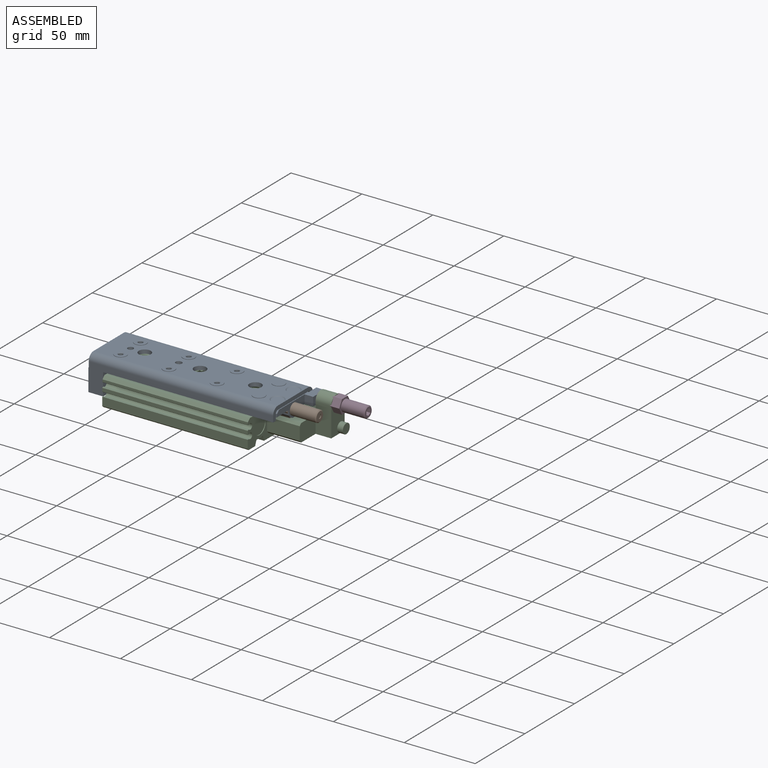
[diagram: assembled view]
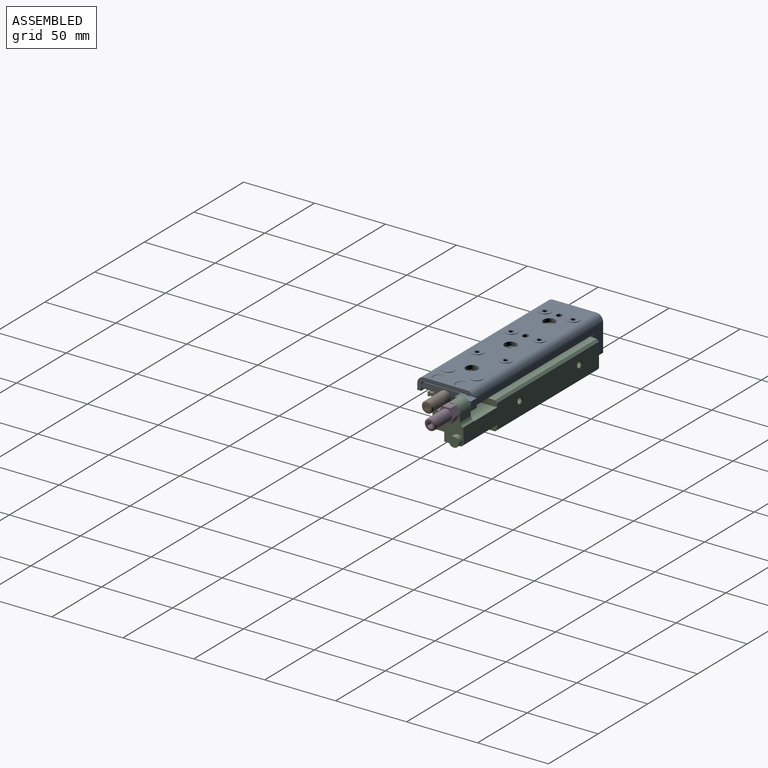
[diagram: assembled view, second angle]
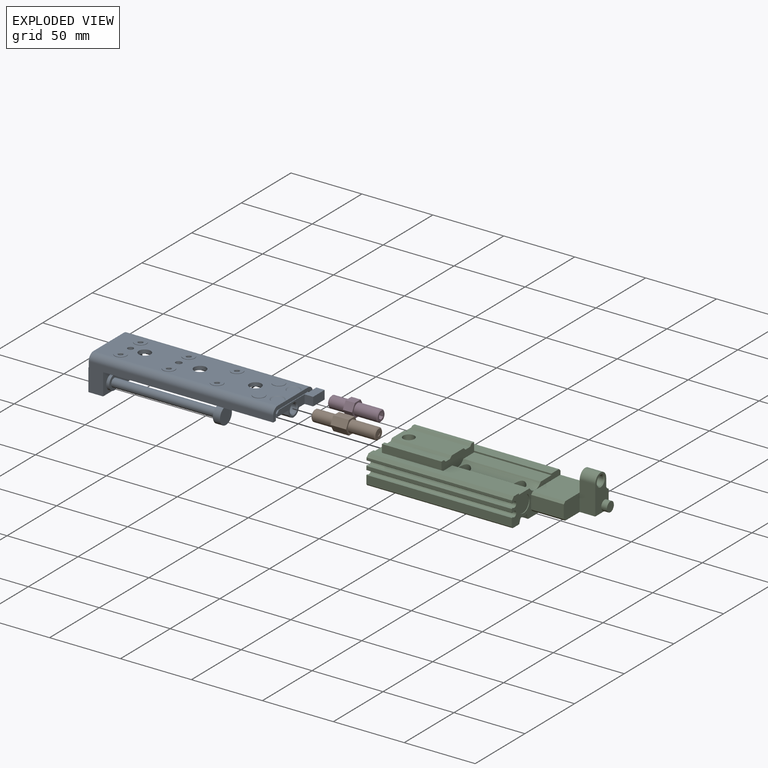
[diagram: exploded view]
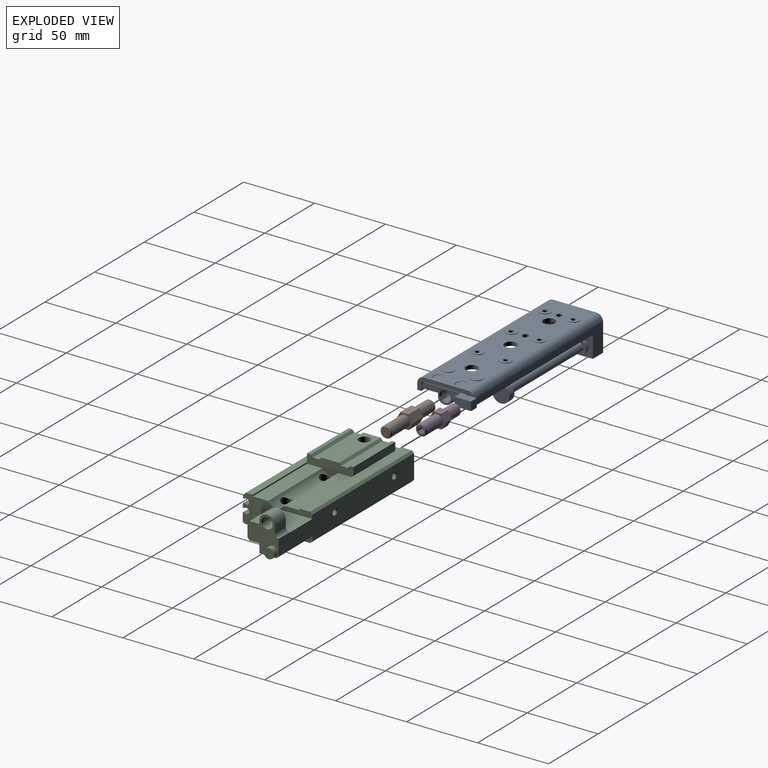
[diagram: exploded view, second angle]
ASSEMBLY  parts=4 mates=3
PART A: 115 faces, bbox 137x42.5x24.9 mm
  f0: plane 130x30.6mm, normal (0,0,1), area 3193.7mm2, adj f8,f10,f23,f24,f25,f45,f47,f49
  f1: plane 39.4x10.4mm, normal (0,0,-1), area 409.8mm2, adj f2,f3,f77,f78
  f2: plane 15.6x10.4mm, normal (0,1,0), area 162.2mm2, adj f1,f77,f78,f84,f90
  f3: plane 15.6x10.4mm, normal (0,-1,0), area 162.2mm2, adj f1,f77,f78,f85,f96
  f4: plane 11.5x3.4mm, normal (0,-1,0), area 37.4mm2, adj f5,f6,f99,f105,f110
  f5: plane 9.08x2mm, normal (0,-0.71,-0.71), area 20.8mm2, adj f4,f100,f105,f110
  f6: plane 11.5x2mm, normal (0,-0.71,0.71), area 32.5mm2, adj f4,f93,f99,f104,f105
  f7: plane 8.2x8.2mm, normal (0,0,1), area 52.8mm2, adj f8
  f8: cone r=4.6mm half-angle=45deg, axis (0,0,1), area 19.3mm2, adj f0,f7
  f9: plane 8.2x8.2mm, normal (0,0,1), area 52.8mm2, adj f10
  f10: cone r=4.6mm half-angle=45deg, axis (0,0,1), area 19.3mm2, adj f0,f9
  f11: plane 12x12mm, normal (1,0,0), area 113.1mm2, adj f12
  f12: cylinder r=6mm len=12mm, axis (-1,0,0), area 188.5mm2, adj f11,f13
  f13: plane 12x12mm, normal (-1,0,0), area 84.8mm2, adj f12,f14
  f14: cylinder r=3mm len=73.75mm, axis (-1,0,0), area 1390.2mm2, adj f13,f15
  f15: plane 10.1x10.1mm, normal (1,0,0), area 51.8mm2, adj f14,f16
  f16: cylinder r=5.05mm len=10.1mm, axis (-1,0,0), area 66.6mm2, adj f15,f77
  f17: plane 12x12mm, normal (1,0,0), area 113.1mm2, adj f18
  f18: cylinder r=6mm len=12mm, axis (-1,0,0), area 188.5mm2, adj f17,f19
  f19: plane 12x12mm, normal (-1,0,0), area 84.8mm2, adj f18,f20
  f20: cylinder r=3mm len=73.75mm, axis (-1,0,0), area 1390.2mm2, adj f19,f21
  f21: plane 10.1x10.1mm, normal (1,0,0), area 51.8mm2, adj f20,f22
  f22: cylinder r=5.05mm len=10.1mm, axis (-1,0,0), area 66.6mm2, adj f21,f77
  f23: cylinder r=4.25mm len=8.5mm, axis (0,0,1), area 72.1mm2, adj f0,f93
  f24: cylinder r=4.25mm len=8.5mm, axis (0,0,1), area 72.1mm2, adj f0,f93
  f25: cylinder r=4.25mm len=8.5mm, axis (0,0,1), area 72.1mm2, adj f0,f93
  f26: cone r=1.62mm half-angle=45deg, axis (0,0,-1), area 6.1mm2, adj f27,f93
  f27: cylinder r=1.62mm len=3.24mm, axis (0,0,1), area 22.8mm2, adj f26,f28
  f28: cone r=2mm half-angle=45deg, axis (0,0,1), area 6.1mm2, adj f27,f61
  f29: cone r=1.62mm half-angle=45deg, axis (0,0,-1), area 6.1mm2, adj f30,f93
  f30: cylinder r=1.62mm len=3.24mm, axis (0,0,1), area 22.8mm2, adj f29,f31
  f31: cone r=2mm half-angle=45deg, axis (0,0,1), area 6.1mm2, adj f30,f63
  f32: cone r=1.62mm half-angle=45deg, axis (0,0,-1), area 6.1mm2, adj f33,f93
  f33: cylinder r=1.62mm len=3.24mm, axis (0,0,1), area 22.8mm2, adj f32,f34
  f34: cone r=2mm half-angle=45deg, axis (0,0,1), area 6.1mm2, adj f33,f65
  f35: cone r=1.62mm half-angle=45deg, axis (0,0,-1), area 6.1mm2, adj f36,f93
  f36: cylinder r=1.62mm len=3.24mm, axis (0,0,1), area 22.8mm2, adj f35,f37
  f37: cone r=2mm half-angle=45deg, axis (0,0,1), area 6.1mm2, adj f36,f55
  f38: cone r=1.62mm half-angle=45deg, axis (0,0,-1), area 6.1mm2, adj f39,f93
  f39: cylinder r=1.62mm len=3.24mm, axis (0,0,1), area 22.8mm2, adj f38,f40
  f40: cone r=2mm half-angle=45deg, axis (0,0,1), area 6.1mm2, adj f39,f57
  f41: cone r=1.62mm half-angle=45deg, axis (0,0,-1), area 6.1mm2, adj f42,f93
  f42: cylinder r=1.62mm len=3.24mm, axis (0,0,1), area 22.8mm2, adj f41,f43
  f43: cone r=2mm half-angle=45deg, axis (0,0,1), area 6.1mm2, adj f42,f59
  f44: plane 8.5x8.5mm, normal (0,0,1), area 56.7mm2, adj f45
  f45: cylinder r=4.25mm len=8.5mm, axis (0,0,-1), area 8mm2, adj f0,f44
  f46: plane 8.5x8.5mm, normal (0,0,1), area 56.7mm2, adj f47
  f47: cylinder r=4.25mm len=8.5mm, axis (0,0,-1), area 8mm2, adj f0,f46
  f48: plane 4.5x4mm, normal (0,0,1), area 14.6mm2, adj f49,f50,f51,f52
  f49: cylinder r=2mm len=4mm, axis (0,0,-1), area 12.6mm2, adj f0,f48,f50,f52
  f50: plane 2x0.5mm, normal (0,1,0), area 1mm2, adj f0,f48,f49,f51
  f51: cylinder r=2mm len=4mm, axis (0,0,-1), area 12.6mm2, adj f0,f48,f50,f52
  f52: plane 2x0.5mm, normal (0,-1,0), area 1mm2, adj f0,f48,f49,f51
  f53: plane 4x4mm, normal (0,0,1), area 12.6mm2, adj f54
  f54: cylinder r=2mm len=4mm, axis (0,0,-1), area 25.1mm2, adj f0,f53
  f55: plane 8.5x8.5mm, normal (0,0,1), area 44.2mm2, adj f37,f56
  f56: cylinder r=4.25mm len=8.5mm, axis (0,0,-1), area 8mm2, adj f0,f55
  f57: plane 8.5x8.5mm, normal (0,0,1), area 44.2mm2, adj f40,f58
  f58: cylinder r=4.25mm len=8.5mm, axis (0,0,-1), area 8mm2, adj f0,f57
  f59: plane 8.5x8.5mm, normal (0,0,1), area 44.2mm2, adj f43,f60
  f60: cylinder r=4.25mm len=8.5mm, axis (0,0,-1), area 8mm2, adj f0,f59
  f61: plane 8.5x8.5mm, normal (0,0,1), area 44.2mm2, adj f28,f62
  f62: cylinder r=4.25mm len=8.5mm, axis (0,0,-1), area 8mm2, adj f0,f61
  f63: plane 8.5x8.5mm, normal (0,0,1), area 44.2mm2, adj f31,f64
  f64: cylinder r=4.25mm len=8.5mm, axis (0,0,-1), area 8mm2, adj f0,f63
  f65: plane 8.5x8.5mm, normal (0,0,1), area 44.2mm2, adj f34,f66
  f66: cylinder r=4.25mm len=8.5mm, axis (0,0,-1), area 8mm2, adj f0,f65
  f67: cone r=1.23mm half-angle=45deg, axis (-1,0,0), area 3.3mm2, adj f68,f78
  f68: cylinder r=1.23mm len=4.73mm, axis (1,0,0), area 36.5mm2, adj f67,f69
  f69: cone r=866.03mm half-angle=60deg, axis (-1,0,0), area 5.5mm2, adj f68
  f70: cone r=1.23mm half-angle=45deg, axis (-1,0,0), area 3.3mm2, adj f71,f78
  f71: cylinder r=1.23mm len=4.73mm, axis (1,0,0), area 36.5mm2, adj f70,f72
  f72: cone r=866.03mm half-angle=60deg, axis (-1,0,0), area 5.5mm2, adj f71
  f73: plane 10.6x10.6mm, normal (-1,0,0), area 88.2mm2, adj f74
  f74: cylinder r=5.3mm len=10.6mm, axis (1,0,0), area 16.7mm2, adj f73,f78
  f75: plane 10.6x10.6mm, normal (-1,0,0), area 88.2mm2, adj f76
  f76: cylinder r=5.3mm len=10.6mm, axis (1,0,0), area 16.7mm2, adj f75,f78
  f77: plane 39.4x21.9mm, normal (1,0,0), area 670.7mm2, adj f1,f2,f3,f16,f22,f90,f91,f92
  f78: plane 39.4x21.9mm, normal (-1,0,0), area 640.3mm2, adj f1,f2,f3,f67,f70,f74,f76,f79
  f79: plane 4.3x0.5mm, normal (0,-1,0), area 2.2mm2, adj f78,f80,f85,f86
  f80: cylinder r=2mm len=2mm, axis (1,0,0), area 1.6mm2, adj f78,f79,f81,f86
  f81: plane 30.6x0.5mm, normal (0,0,1), area 15.3mm2, adj f78,f80,f82,f86
  f82: cylinder r=2mm len=2mm, axis (1,0,0), area 1.6mm2, adj f78,f81,f83,f86
  f83: plane 4.3x0.5mm, normal (0,1,0), area 2.2mm2, adj f78,f82,f84,f86
  f84: plane 2.4x0.5mm, normal (0,0,1), area 1.2mm2, adj f2,f78,f83,f86
  f85: plane 2.4x0.5mm, normal (0,0,1), area 1.2mm2, adj f3,f78,f79,f86
  f86: plane 40x9mm, normal (-1,0,0), area 134.3mm2, adj f0,f79,f80,f81,f82,f83,f84,f85
  f87: plane 40x9mm, normal (1,0,0), area 134.3mm2, adj f0,f88,f89,f90,f91,f92,f93,f94
  f88: cylinder r=4.7mm len=130mm, axis (1,0,0), area 959.8mm2, adj f0,f86,f87,f89
  f89: plane 130x4.3mm, normal (0,1,0), area 559mm2, adj f86,f87,f88,f90
  f90: plane 130x2.7mm, normal (0,0,-1), area 327.2mm2, adj f2,f77,f86,f87,f89,f91
  f91: plane 120.1x4.3mm, normal (0,-1,0), area 516.4mm2, adj f77,f87,f90,f92
  f92: cylinder r=2mm len=120.1mm, axis (1,0,0), area 377.3mm2, adj f77,f87,f91,f93
  f93: plane 120.1x30.6mm, normal (0,0,-1), area 3101.6mm2, adj f6,f23,f24,f25,f26,f29,f32,f35
  f94: cylinder r=2mm len=120.1mm, axis (1,0,0), area 377.3mm2, adj f77,f87,f93,f95
  f95: plane 120.1x4.3mm, normal (0,1,0), area 516.4mm2, adj f77,f87,f94,f96
  f96: plane 130x2.7mm, normal (0,0,-1), area 327.2mm2, adj f3,f77,f86,f87,f95,f97
  f97: plane 130x4.3mm, normal (0,-1,0), area 559mm2, adj f86,f87,f96,f98
  f98: cylinder r=4.7mm len=130mm, axis (1,0,0), area 959.8mm2, adj f0,f86,f87,f97
  f99: plane 27.8x10.4mm, normal (1,0,0), area 125.9mm2, adj f4,f6,f100,f101,f102,f104,f106,f110
  f100: plane 11.5x10.13mm, normal (0,0,-1), area 58.1mm2, adj f5,f99,f101,f105,f110,f111
  f101: cylinder r=5.3mm len=11.5mm, axis (-1,0,0), area 152.6mm2, adj f99,f100,f102,f105
  f102: plane 17.5x17.3mm, normal (0,0,-1), area 179.6mm2, adj f99,f101,f103,f105,f106,f107,f108,f109
  f103: plane 11.7x6.1mm, normal (0,1,0), area 71.4mm2, adj f93,f102,f104,f105,f108
  f104: plane 37.4x6.5mm, normal (0,0,1), area 83mm2, adj f6,f87,f99,f103,f106,f107,f108,f109
  f105: plane 31.8x10.4mm, normal (-1,0,0), area 188.7mm2, adj f4,f5,f6,f93,f100,f101,f102,f103
  f106: plane 6.1x6mm, normal (0,-1,0), area 36.6mm2, adj f99,f102,f104,f109
  f107: plane 6.1x5.8mm, normal (0,1,0), area 35.4mm2, adj f102,f104,f108,f109
  f108: plane 7.6x6.1mm, normal (-1,0,0), area 46.4mm2, adj f102,f103,f104,f107
  f109: plane 11.6x6.1mm, normal (1,0,0), area 70.8mm2, adj f102,f104,f106,f107
  f110: plane 11.9x5.89mm, normal (0.5,0,-0.87), area 76.9mm2, adj f4,f5,f99,f100,f111
  f111: plane 5.89x3.4mm, normal (0,-1,0), area 10mm2, adj f99,f100,f110
  f112: cone r=4mm half-angle=45deg, axis (1,0,0), area 22mm2, adj f99,f113
  f113: cylinder r=3.32mm len=10.15mm, axis (1,0,0), area 211.9mm2, adj f112,f114
  f114: cone r=3.32mm half-angle=45deg, axis (-1,0,0), area 22mm2, adj f105,f113
PART B: 23 faces, bbox 45x11.5x10 mm
  f0: plane 11x5.77mm, normal (0,0,-1), area 63.5mm2, adj f1,f2,f4,f9
  f1: plane 11.55x10mm, normal (1,0,0), area 36.3mm2, adj f0,f2,f4,f10,f20,f21,f22
  f2: plane 11x5mm, normal (0,0.87,-0.5), area 63.5mm2, adj f0,f1,f9,f22
  f3: plane 6.77x6.77mm, normal (1,0,0), area 22.2mm2, adj f5,f11,f12,f13,f14,f15,f16
  f4: plane 11x5mm, normal (0,-0.87,-0.5), area 63.5mm2, adj f0,f1,f9,f20
  f5: cone r=4mm half-angle=45deg, axis (-1,0,0), area 20.1mm2, adj f3,f10
  f6: cylinder r=4mm len=18.39mm, axis (-1,0,0), area 462.1mm2, adj f7,f9
  f7: cone r=3.39mm half-angle=45deg, axis (1,0,0), area 20.1mm2, adj f6,f8
  f8: plane 6.77x6.77mm, normal (-1,0,0), area 29.9mm2, adj f7,f19
  f9: plane 11.55x10mm, normal (-1,0,0), area 36.3mm2, adj f0,f2,f4,f6,f20,f21,f22
  f10: cylinder r=4mm len=14.39mm, axis (-1,0,0), area 361.6mm2, adj f1,f5
  f11: plane 4x2.31mm, normal (0,1,0), area 9.2mm2, adj f3,f12,f16,f17
  f12: plane 4x2mm, normal (0,0.5,-0.87), area 9.2mm2, adj f3,f11,f13,f17
  f13: plane 4x2mm, normal (0,-0.5,-0.87), area 9.2mm2, adj f3,f12,f14,f17
  f14: plane 4x2.31mm, normal (0,-1,0), area 9.2mm2, adj f3,f13,f15,f17
  f15: plane 4x2mm, normal (0,-0.5,0.87), area 9.2mm2, adj f3,f14,f16,f17
  f16: plane 4x2mm, normal (0,0.5,0.87), area 9.2mm2, adj f3,f11,f15,f17
  f17: plane 4.62x4mm, normal (1,0,0), area 13.9mm2, adj f11,f12,f13,f14,f15,f16
  f18: plane 2.8x2.8mm, normal (-1,0,0), area 6.2mm2, adj f19
  f19: cylinder r=1.4mm len=2.8mm, axis (1,0,0), area 4.4mm2, adj f8,f18
  f20: plane 11x5mm, normal (0,-0.87,0.5), area 63.5mm2, adj f1,f4,f9,f21
  f21: plane 11x5.77mm, normal (0,0,1), area 63.5mm2, adj f1,f9,f20,f22
  f22: plane 11x5mm, normal (0,0.87,0.5), area 63.5mm2, adj f1,f2,f9,f21
PART C: 125 faces, bbox 140.5x49x29.4 mm
  f0: cylinder r=4mm len=8mm, axis (0,0,1), area 140.2mm2, adj f84,f122
  f1: cylinder r=2.1mm len=11.1mm, axis (0,0,1), area 146.5mm2, adj f115,f116
  f2: cylinder r=2.1mm len=11.1mm, axis (0,0,1), area 146.5mm2, adj f118,f119
  f3: cylinder r=2.1mm len=11.1mm, axis (0,0,1), area 146.5mm2, adj f121,f122
  f4: plane 5x4mm, normal (0,0,-1), area 16.6mm2, adj f5,f6,f7,f8
  f5: cylinder r=2mm len=4mm, axis (0,0,1), area 15.7mm2, adj f4,f6,f8,f45
  f6: plane 2.5x1mm, normal (0,1,0), area 2.5mm2, adj f4,f5,f7,f45
  f7: cylinder r=2mm len=4mm, axis (0,0,1), area 15.7mm2, adj f4,f6,f8,f45
  f8: plane 2.5x1mm, normal (0,-1,0), area 2.5mm2, adj f4,f5,f7,f45
  f9: plane 4x4mm, normal (0,0,-1), area 12.6mm2, adj f10
  f10: cylinder r=2mm len=4mm, axis (0,0,1), area 31.4mm2, adj f9,f45
  f11: plane 5x4mm, normal (0,0,-1), area 16.6mm2, adj f12,f13,f14,f15
  f12: cylinder r=2mm len=4mm, axis (0,0,1), area 15.7mm2, adj f11,f13,f15,f51
  f13: plane 2.5x1mm, normal (0,1,0), area 2.5mm2, adj f11,f12,f14,f51
  f14: cylinder r=2mm len=4mm, axis (0,0,1), area 15.7mm2, adj f11,f13,f15,f51
  f15: plane 2.5x1mm, normal (0,-1,0), area 2.5mm2, adj f11,f12,f14,f51
  f16: plane 4x4mm, normal (0,0,-1), area 12.6mm2, adj f17
  f17: cylinder r=2mm len=4mm, axis (0,0,1), area 31.4mm2, adj f16,f51
  f18: plane 12x12mm, normal (1,0,0), area 113.1mm2, adj f19
  f19: cylinder r=6mm len=12mm, axis (-1,0,0), area 18.8mm2, adj f18,f43,f86
  f20: plane 12x12mm, normal (1,0,0), area 113.1mm2, adj f21
  f21: cylinder r=6mm len=12mm, axis (-1,0,0), area 18.8mm2, adj f20,f85
  f22: cone r=2.07mm half-angle=45deg, axis (0,1,0), area 8.8mm2, adj f23,f42
  f23: cylinder r=2.07mm len=4.57mm, axis (0,-1,0), area 59.3mm2, adj f22,f24
  f24: cone r=866.03mm half-angle=60deg, axis (0,1,0), area 15.5mm2, adj f23
  f25: cone r=2.07mm half-angle=45deg, axis (0,1,0), area 8.8mm2, adj f26,f42
  f26: cylinder r=2.07mm len=4.57mm, axis (0,-1,0), area 59.3mm2, adj f25,f27
  f27: cone r=866.03mm half-angle=60deg, axis (0,1,0), area 15.5mm2, adj f26
  f28: plane 32.8x9.8mm, normal (-1,0,0), area 222mm2, adj f30,f31,f32,f33,f34,f35,f36,f37
  f29: plane 32.8x9.8mm, normal (1,0,0), area 222mm2, adj f30,f31,f32,f33,f34,f35,f36,f37
  f30: plane 42x2.5mm, normal (0,0,1), area 105mm2, adj f28,f29,f31,f40
  f31: plane 42x1.6mm, normal (0,0.71,0.71), area 95mm2, adj f28,f29,f30,f32
  f32: plane 42x4.6mm, normal (0,0,1), area 193.2mm2, adj f28,f29,f31,f33
  f33: plane 42x1.6mm, normal (0,-0.71,0.71), area 95mm2, adj f28,f29,f32,f34
  f34: plane 42x12.2mm, normal (0,0,1), area 462.1mm2, adj f28,f29,f33,f35,f117
  f35: plane 42x1.6mm, normal (0,0.71,0.71), area 95mm2, adj f28,f29,f34,f36
  f36: plane 42x4.6mm, normal (0,0,1), area 193.2mm2, adj f28,f29,f35,f37
  f37: plane 42x1.6mm, normal (0,-0.71,0.71), area 95mm2, adj f28,f29,f36,f38
  f38: plane 42x2.5mm, normal (0,0,1), area 105mm2, adj f28,f29,f37,f39
  f39: plane 42x5.6mm, normal (0,1,0), area 235.2mm2, adj f28,f29,f38,f76
  f40: plane 42x5.6mm, normal (0,-1,0), area 235.2mm2, adj f28,f29,f30,f72
  f41: plane 49x19.9mm, normal (-1,0,0), area 773.2mm2, adj f42,f44,f45,f46,f47,f48,f49,f50
  f42: plane 136.5x16.9mm, normal (0,1,0), area 2066.2mm2, adj f22,f25,f41,f44,f77,f86,f87,f90
  f43: plane 12x10.3mm, normal (-1,0,0), area 103.3mm2, adj f19,f102
  f44: plane 102.5x1.5mm, normal (0,0.71,-0.71), area 217.4mm2, adj f41,f42,f45,f87
  f45: plane 102.5x8mm, normal (0,0,-1), area 790.9mm2, adj f5,f6,f7,f8,f10,f41,f44,f46
  f46: plane 102.5x2.89mm, normal (0,-0.94,-0.34), area 315.3mm2, adj f41,f45,f47,f87
  f47: cylinder r=1mm len=102.5mm, axis (-1,0,0), area 153.5mm2, adj f41,f46,f48,f87,f94
  f48: cylinder r=8.2mm len=102.5mm, axis (-1,0,0), area 464.2mm2, adj f41,f47,f49,f88,f94,f101
  f49: cylinder r=1mm len=102.5mm, axis (-1,0,0), area 153.5mm2, adj f41,f48,f50,f85,f101
  f50: plane 102.5x2.89mm, normal (0,0.94,-0.34), area 315.3mm2, adj f41,f49,f51,f85
  f51: plane 102.5x14mm, normal (0,0,-1), area 1347mm2, adj f12,f13,f14,f15,f17,f41,f50,f52
  f52: plane 102.5x2.89mm, normal (0,-0.94,-0.34), area 315.3mm2, adj f41,f51,f53,f85
  f53: cylinder r=1mm len=102.5mm, axis (-1,0,0), area 153.5mm2, adj f41,f52,f54,f85
  f54: cylinder r=8.2mm len=102.5mm, axis (-1,0,0), area 464.2mm2, adj f41,f53,f55,f85
  f55: cylinder r=1mm len=102.5mm, axis (-1,0,0), area 153.5mm2, adj f41,f54,f56,f85
  f56: plane 102.5x2.89mm, normal (0,0.94,-0.34), area 315.3mm2, adj f41,f55,f57,f85
  f57: plane 102.5x6.5mm, normal (0,0,-1), area 666.2mm2, adj f41,f56,f58,f85
  f58: plane 102.5x1mm, normal (0,-0.71,-0.71), area 145mm2, adj f41,f57,f59,f85
  f59: plane 102.5x5.9mm, normal (0,-1,0), area 604.7mm2, adj f41,f58,f60,f85
  f60: plane 102.5x1.18mm, normal (0,0,1), area 120.7mm2, adj f41,f59,f61,f85
  f61: cylinder r=2mm len=102.5mm, axis (-1,0,0), area 940.3mm2, adj f41,f60,f62,f85
  f62: plane 102.5x0.88mm, normal (0,0,-1), area 89.9mm2, adj f41,f61,f63,f85
  f63: plane 102.5x0.3mm, normal (0,-0.71,-0.71), area 43.5mm2, adj f41,f62,f64,f85
  f64: plane 102.5x2.4mm, normal (0,-1,0), area 246mm2, adj f41,f63,f65,f85
  f65: plane 102.5x0.3mm, normal (0,-0.71,0.71), area 43.5mm2, adj f41,f64,f66,f85
  f66: plane 102.5x0.88mm, normal (0,0,1), area 89.9mm2, adj f41,f65,f67,f85
  f67: cylinder r=2mm len=102.5mm, axis (-1,0,0), area 940.3mm2, adj f41,f66,f68,f85
  f68: plane 102.5x0.48mm, normal (0,0,-1), area 48.9mm2, adj f41,f67,f69,f85
  f69: cylinder r=0.5mm len=102.5mm, axis (-1,0,0), area 80.5mm2, adj f41,f68,f70,f85
  f70: plane 102.5x1.5mm, normal (0,-1,0), area 153.7mm2, adj f41,f69,f71,f85
  f71: plane 102.5x2mm, normal (0,-0.71,0.71), area 289.9mm2, adj f41,f70,f72,f85
  f72: plane 102.5x4.9mm, normal (0,0,1), area 502.2mm2, adj f40,f41,f71,f73,f78,f85
  f73: plane 54.5x1mm, normal (0,1,0), area 54.5mm2, adj f29,f72,f82,f85
  f74: plane 54.5x10.8mm, normal (0,0,1), area 588.6mm2, adj f29,f75,f84,f86
  f75: plane 54.5x1mm, normal (0,-1,0), area 54.5mm2, adj f29,f74,f76,f86
  f76: plane 102.5x7.6mm, normal (0,0,1), area 779mm2, adj f39,f41,f75,f77,f81,f86
  f77: plane 102.5x1.5mm, normal (0,0.71,0.71), area 217.4mm2, adj f41,f42,f76,f86
  f78: plane 6x1mm, normal (0,1,0), area 6mm2, adj f28,f41,f72,f83
  f79: cylinder r=6.5mm len=11.2mm, axis (-1,0,0), area 81mm2, adj f28,f41,f80,f83
  f80: plane 10.8x6mm, normal (0,0,1), area 64.8mm2, adj f28,f41,f79,f81
  f81: plane 6x1mm, normal (0,-1,0), area 6mm2, adj f28,f41,f76,f80
  f82: plane 54.5x10.8mm, normal (0,0,1), area 588.6mm2, adj f29,f73,f84,f85
  f83: plane 10.8x6mm, normal (0,0,1), area 64.8mm2, adj f28,f41,f78,f79
  f84: cylinder r=6.5mm len=54.5mm, axis (-1,0,0), area 629mm2, adj f0,f29,f74,f82,f85,f86,f120
  f85: plane 31.83x19.9mm, normal (1,0,0), area 244.3mm2, adj f21,f49,f50,f51,f52,f53,f54,f55
  f86: plane 25.5x4.2mm, normal (1,0,0), area 67.1mm2, adj f19,f42,f74,f75,f76,f77,f84,f102
  f87: plane 10.83x4.8mm, normal (1,0,0), area 33.3mm2, adj f42,f44,f45,f46,f47,f97,f103
  f88: plane 2.55x0.1mm, normal (1,0,0), area 0.2mm2, adj f48,f103
  f89: cylinder r=3.5mm len=7mm, axis (1,0,0), area 88mm2, adj f90,f124
  f90: plane 26.05x13.5mm, normal (1,0,0), area 217.1mm2, adj f42,f89,f91,f95,f96,f97,f98,f99
  f91: cone r=4mm half-angle=45deg, axis (1,0,0), area 22mm2, adj f90,f92
  f92: cylinder r=3.32mm len=9.65mm, axis (1,0,0), area 201.5mm2, adj f91,f123
  f93: plane 13.65x13.5mm, normal (-1,0,0), area 89.3mm2, adj f42,f95,f96,f98,f99,f102,f123
  f94: plane 1.89x0.25mm, normal (-1,0,0), area 0.3mm2, adj f47,f48,f103
  f95: plane 11x4.95mm, normal (0,1,0), area 54.5mm2, adj f90,f93,f96,f99
  f96: cylinder r=3mm len=11mm, axis (1,0,0), area 46.3mm2, adj f42,f90,f93,f95
  f97: plane 34x1.5mm, normal (0,0.71,-0.71), area 72.1mm2, adj f42,f87,f90,f103
  f98: plane 20.55x11mm, normal (0,-1,0), area 226.1mm2, adj f90,f93,f99,f100,f103
  f99: cylinder r=5.5mm len=11mm, axis (1,0,0), area 190.1mm2, adj f90,f93,f95,f98
  f100: plane 16x12.4mm, normal (1,0,0), area 196.1mm2, adj f98,f102,f103,f104,f105,f106
  f101: plane 1.89x0.25mm, normal (-1,0,0), area 0.3mm2, adj f48,f49,f103
  f102: plane 28x23mm, normal (0,0,1), area 644mm2, adj f42,f43,f85,f86,f93,f100,f106
  f103: plane 34x26.5mm, normal (0,0,-1), area 741.5mm2, adj f85,f87,f88,f90,f94,f97,f98,f100
  f104: plane 23x1.5mm, normal (0,-0.71,-0.71), area 48.8mm2, adj f85,f100,f103,f105
  f105: plane 23x9.4mm, normal (0,-1,0), area 216.2mm2, adj f85,f100,f104,f106
  f106: plane 23x1.5mm, normal (0,-0.71,0.71), area 48.8mm2, adj f85,f100,f102,f105
  f107: plane 12x12mm, normal (-1,0,0), area 113.1mm2, adj f108
  f108: cylinder r=6mm len=55mm, axis (-1,0,0), area 2073.5mm2, adj f107,f109
  f109: plane 12x12mm, normal (1,0,0), area 84.8mm2, adj f108,f110
  f110: cylinder r=3mm len=23.75mm, axis (-1,0,0), area 447.7mm2, adj f41,f109
  f111: plane 12x12mm, normal (-1,0,0), area 113.1mm2, adj f112
  f112: cylinder r=6mm len=55mm, axis (-1,0,0), area 2073.5mm2, adj f111,f113
  f113: plane 12x12mm, normal (1,0,0), area 84.8mm2, adj f112,f114
  f114: cylinder r=3mm len=23.75mm, axis (-1,0,0), area 447.7mm2, adj f41,f113
  f115: cone r=2.07mm half-angle=45deg, axis (0,0,-1), area 8.2mm2, adj f1,f51
  f116: plane 8x8mm, normal (0,0,1), area 36.4mm2, adj f1,f117
  f117: cylinder r=4mm len=14mm, axis (0,0,1), area 351.9mm2, adj f34,f116
  f118: cone r=2.07mm half-angle=45deg, axis (0,0,-1), area 8.2mm2, adj f2,f51
  f119: plane 8x8mm, normal (0,0,1), area 36.4mm2, adj f2,f120
  f120: cylinder r=4mm len=8mm, axis (0,0,1), area 140.2mm2, adj f84,f119
  f121: cone r=2.07mm half-angle=45deg, axis (0,0,-1), area 8.2mm2, adj f3,f51
  f122: plane 8x8mm, normal (0,0,1), area 36.4mm2, adj f0,f3
  f123: cone r=3.32mm half-angle=45deg, axis (-1,0,0), area 22mm2, adj f92,f93
  f124: plane 7x7mm, normal (1,0,0), area 38.5mm2, adj f89
PART D: 23 faces, bbox 35x11.5x10 mm
  f0: plane 6.5x5.77mm, normal (0,0,-1), area 37.5mm2, adj f1,f2,f4,f9
  f1: plane 11.55x10mm, normal (1,0,0), area 36.3mm2, adj f0,f2,f4,f10,f20,f21,f22
  f2: plane 6.5x5mm, normal (0,0.87,-0.5), area 37.5mm2, adj f0,f1,f9,f22
  f3: plane 6.77x6.77mm, normal (1,0,0), area 22.2mm2, adj f5,f11,f12,f13,f14,f15,f16
  f4: plane 6.5x5mm, normal (0,-0.87,-0.5), area 37.5mm2, adj f0,f1,f9,f20
  f5: cone r=4mm half-angle=45deg, axis (-1,0,0), area 20.1mm2, adj f3,f10
  f6: cylinder r=4mm len=11.39mm, axis (-1,0,0), area 286.2mm2, adj f7,f9
  f7: cone r=3.39mm half-angle=45deg, axis (1,0,0), area 20.1mm2, adj f6,f8
  f8: plane 6.77x6.77mm, normal (-1,0,0), area 29.9mm2, adj f7,f19
  f9: plane 11.55x10mm, normal (-1,0,0), area 36.3mm2, adj f0,f2,f4,f6,f20,f21,f22
  f10: cylinder r=4mm len=15.89mm, axis (-1,0,0), area 399.3mm2, adj f1,f5
  f11: plane 4x2.31mm, normal (0,1,0), area 9.2mm2, adj f3,f12,f16,f17
  f12: plane 4x2mm, normal (0,0.5,-0.87), area 9.2mm2, adj f3,f11,f13,f17
  f13: plane 4x2mm, normal (0,-0.5,-0.87), area 9.2mm2, adj f3,f12,f14,f17
  f14: plane 4x2.31mm, normal (0,-1,0), area 9.2mm2, adj f3,f13,f15,f17
  f15: plane 4x2mm, normal (0,-0.5,0.87), area 9.2mm2, adj f3,f14,f16,f17
  f16: plane 4x2mm, normal (0,0.5,0.87), area 9.2mm2, adj f3,f11,f15,f17
  f17: plane 4.62x4mm, normal (1,0,0), area 13.9mm2, adj f11,f12,f13,f14,f15,f16
  f18: plane 2.8x2.8mm, normal (-1,0,0), area 6.2mm2, adj f19
  f19: cylinder r=1.4mm len=2.8mm, axis (1,0,0), area 4.4mm2, adj f8,f18
  f20: plane 6.5x5mm, normal (0,-0.87,0.5), area 37.5mm2, adj f1,f4,f9,f21
  f21: plane 6.5x5.77mm, normal (0,0,1), area 37.5mm2, adj f1,f9,f20,f22
  f22: plane 6.5x5mm, normal (0,0.87,0.5), area 37.5mm2, adj f1,f2,f9,f21
PLACE A t=(0.51,-6.36,1.63)mm
PLACE B rot(axis=(0,-1,0),180deg) t=(31.84,-6.36,45.43)mm
PLACE C t=(0.51,-6.36,1.63)mm fixed
PLACE D t=(-0.16,-6.36,1.63)mm
MATE fastened B.f5 <-> A.f112  axis (1,0,0) through (15.84,-6.36,23.53)mm
MATE fastened D.f5 <-> C.f92  axis (-1,0,0) through (33.84,11.14,25.53)mm
MATE slider A.f76 <-> C.f21  axis (1,0,0) through (-101.99,-17.86,13.03)mm
